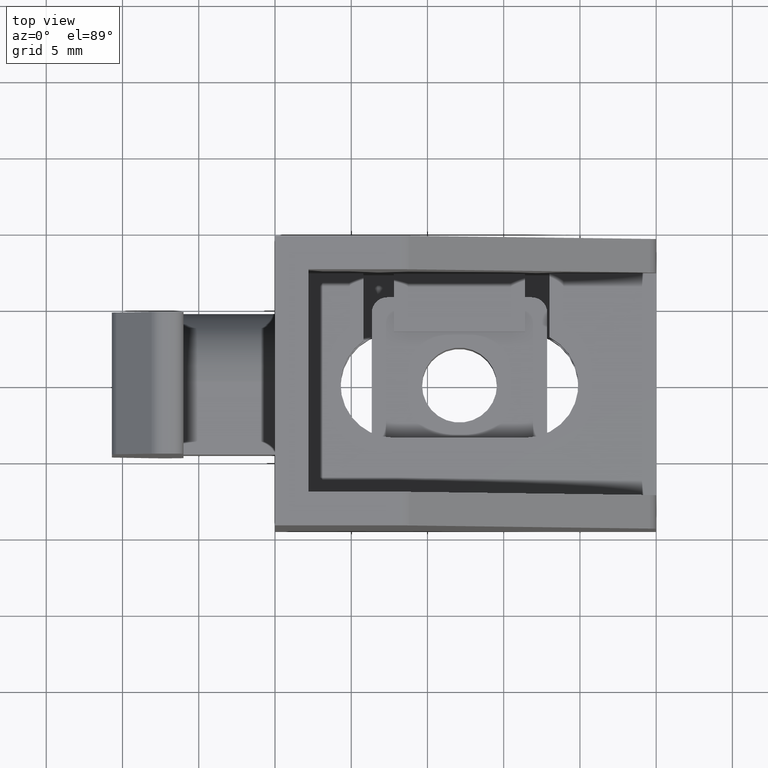
[diagram: clean part render]
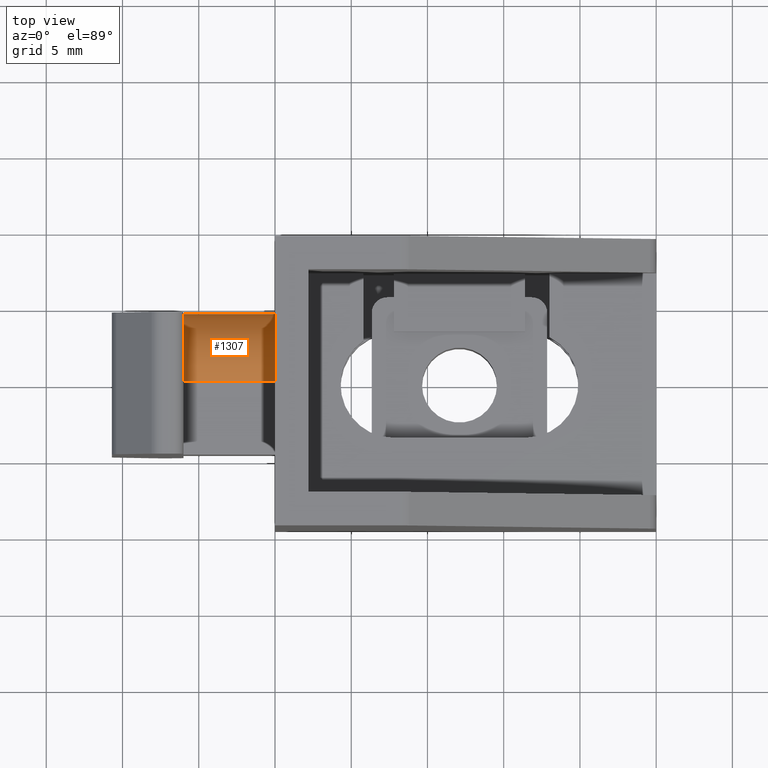
[diagram: same view with one face highlighted and labeled with its STEP entity id]
A machine part, top view. The second image highlights one B-rep face of the part: STEP entity #1307.
In plain terms, the highlighted cylindrical surface (partial cylindrical patch) has radius 4.5 mm, axis along (1, 0, 0).
Its self-contained STEP definition (entity closure, byte-faithful):
#162=LINE('',#2070,#306);
#186=LINE('',#2141,#330);
#306=VECTOR('',#1671,6.);
#330=VECTOR('',#1737,6.);
#400=FACE_OUTER_BOUND('',#472,.T.);
#472=EDGE_LOOP('',(#1139,#1140,#1141,#1142));
#520=CIRCLE('',#1388,4.5);
#522=CIRCLE('',#1391,4.5);
#619=VERTEX_POINT('',#2030);
#622=VERTEX_POINT('',#2036);
#629=VERTEX_POINT('',#2052);
#630=VERTEX_POINT('',#2054);
#782=EDGE_CURVE('',#619,#622,#520,.F.);
#790=EDGE_CURVE('',#630,#629,#522,.F.);
#798=EDGE_CURVE('',#629,#619,#162,.T.);
#835=EDGE_CURVE('',#622,#630,#186,.T.);
#1139=ORIENTED_EDGE('',*,*,#782,.T.);
#1140=ORIENTED_EDGE('',*,*,#835,.T.);
#1141=ORIENTED_EDGE('',*,*,#790,.T.);
#1142=ORIENTED_EDGE('',*,*,#798,.T.);
#1255=CYLINDRICAL_SURFACE('',#1416,4.5);
#1307=ADVANCED_FACE('',(#400),#1255,.T.);
#1388=AXIS2_PLACEMENT_3D('',#2038,#1645,#1646);
#1391=AXIS2_PLACEMENT_3D('',#2055,#1657,#1658);
#1416=AXIS2_PLACEMENT_3D('',#2140,#1735,#1736);
#1645=DIRECTION('center_axis',(-1.,0.,0.));
#1646=DIRECTION('ref_axis',(0.,0.707106781186548,0.707106781186547));
#1657=DIRECTION('center_axis',(1.,0.,0.));
#1658=DIRECTION('ref_axis',(0.,0.707106781186548,0.707106781186547));
#1671=DIRECTION('',(-1.,0.,0.));
#1735=DIRECTION('center_axis',(1.,0.,0.));
#1736=DIRECTION('ref_axis',(0.,0.707106781186548,0.707106781186547));
#1737=DIRECTION('',(1.,0.,0.));
#2030=CARTESIAN_POINT('',(-6.,4.65,8.3));
#2036=CARTESIAN_POINT('',(-6.,0.150000000000001,12.8));
#2038=CARTESIAN_POINT('Origin',(-6.,0.150000000000001,8.3));
#2052=CARTESIAN_POINT('',(0.,4.65,8.3));
#2054=CARTESIAN_POINT('',(0.,0.150000000000001,12.8));
#2055=CARTESIAN_POINT('Origin',(0.,0.150000000000001,8.3));
#2070=CARTESIAN_POINT('',(-5.92069321320513,4.65,8.3));
#2140=CARTESIAN_POINT('Origin',(-5.92069321320513,0.150000000000001,8.3));
#2141=CARTESIAN_POINT('',(-5.92069321320513,0.150000000000001,12.8));